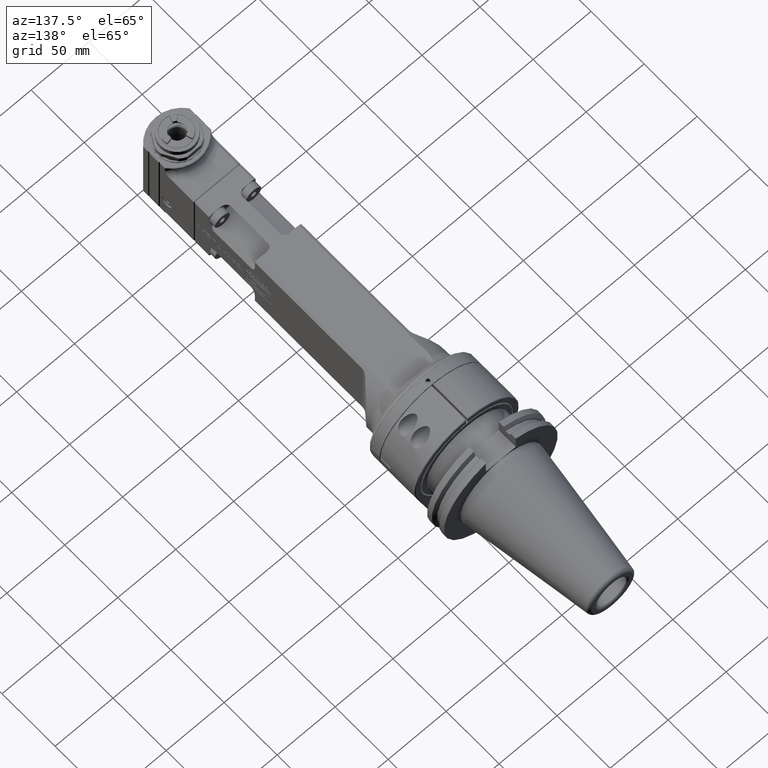
[diagram: clean part render]
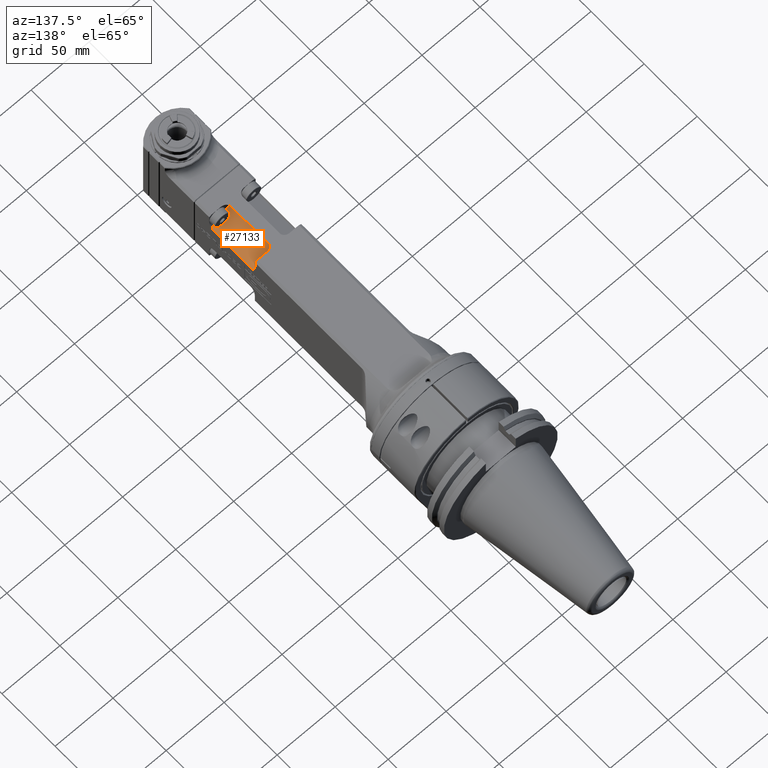
[diagram: same view with one face highlighted and labeled with its STEP entity id]
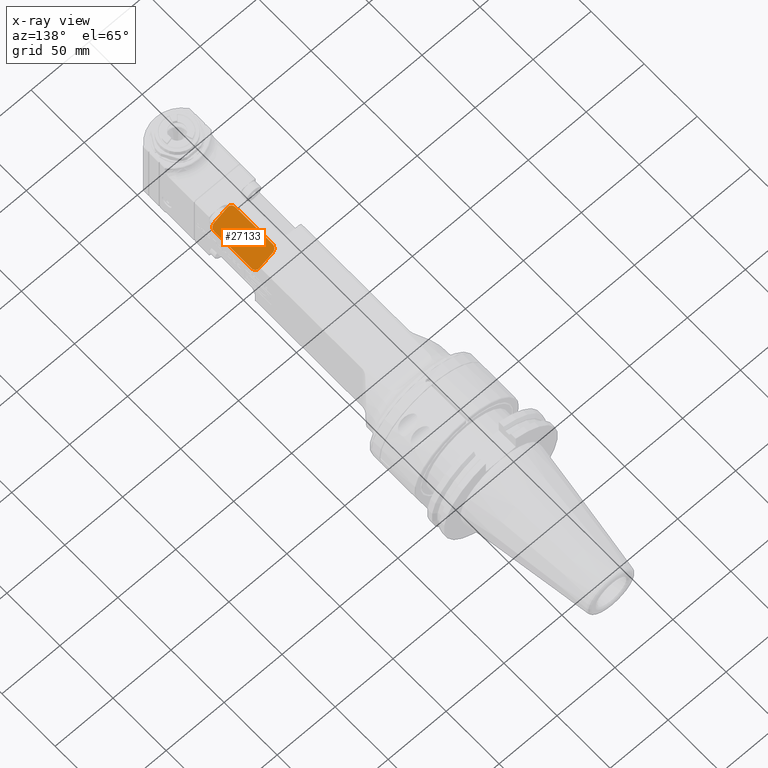
[diagram: x-ray of the same camera — body ghosted, the highlighted face saturated]
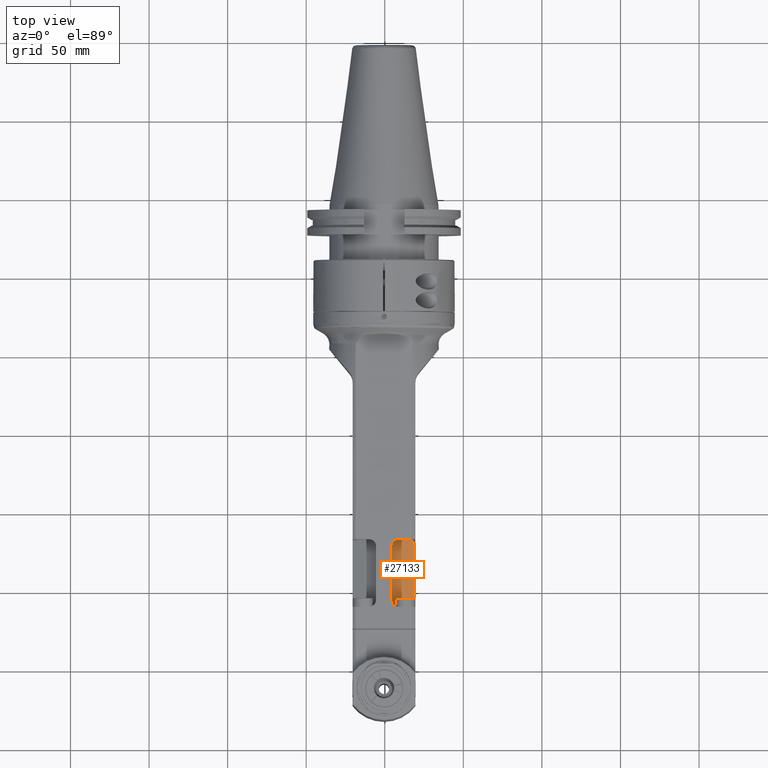
[diagram: same view with one face highlighted and labeled with its STEP entity id]
A machine part, auxiliary view. The second image highlights one B-rep face of the part: STEP entity #27133.
The next image is the same camera in x-ray: the body ghosted, the highlighted face saturated — about 0% of this face is hidden behind the body in this view.
A second angle (top view) of the same face is appended — the face is thin or edge-on in the first view.
In plain terms, the highlighted planar face has unit normal (0.4981, -0, 0.8671).
Its self-contained STEP definition (entity closure, byte-faithful):
#1224=CIRCLE('',#29288,4.);
#1225=CIRCLE('',#29290,4.);
#1226=CIRCLE('',#29291,4.);
#1227=CIRCLE('',#29292,4.);
#2752=FACE_OUTER_BOUND('',#4372,.T.);
#4372=EDGE_LOOP('',(#20360,#20361,#20362,#20363,#20364,#20365,#20366,#20367));
#6283=LINE('',#43739,#8918);
#6285=LINE('',#43751,#8920);
#6286=LINE('',#43754,#8921);
#6287=LINE('',#43757,#8922);
#8918=VECTOR('',#33771,13.0000000000003);
#8920=VECTOR('',#33783,13.0000000000003);
#8921=VECTOR('',#33786,35.);
#8922=VECTOR('',#33789,35.);
#11718=VERTEX_POINT('',#43733);
#11720=VERTEX_POINT('',#43737);
#11722=VERTEX_POINT('',#43743);
#11723=VERTEX_POINT('',#43747);
#11724=VERTEX_POINT('',#43748);
#11725=VERTEX_POINT('',#43750);
#11726=VERTEX_POINT('',#43752);
#11727=VERTEX_POINT('',#43755);
#14878=EDGE_CURVE('',#11720,#11718,#6283,.T.);
#14880=EDGE_CURVE('',#11722,#11718,#1224,.T.);
#14882=EDGE_CURVE('',#11723,#11724,#1225,.T.);
#14883=EDGE_CURVE('',#11724,#11725,#6285,.T.);
#14884=EDGE_CURVE('',#11725,#11726,#1226,.T.);
#14885=EDGE_CURVE('',#11722,#11726,#6286,.T.);
#14886=EDGE_CURVE('',#11720,#11727,#1227,.T.);
#14887=EDGE_CURVE('',#11727,#11723,#6287,.T.);
#20360=ORIENTED_EDGE('',*,*,#14882,.T.);
#20361=ORIENTED_EDGE('',*,*,#14883,.T.);
#20362=ORIENTED_EDGE('',*,*,#14884,.T.);
#20363=ORIENTED_EDGE('',*,*,#14885,.F.);
#20364=ORIENTED_EDGE('',*,*,#14880,.T.);
#20365=ORIENTED_EDGE('',*,*,#14878,.F.);
#20366=ORIENTED_EDGE('',*,*,#14886,.T.);
#20367=ORIENTED_EDGE('',*,*,#14887,.T.);
#25923=PLANE('',#29289);
#27133=ADVANCED_FACE('',(#2752),#25923,.T.);
#29288=AXIS2_PLACEMENT_3D('',#43744,#33776,#33777);
#29289=AXIS2_PLACEMENT_3D('',#43746,#33779,#33780);
#29290=AXIS2_PLACEMENT_3D('',#43749,#33781,#33782);
#29291=AXIS2_PLACEMENT_3D('',#43753,#33784,#33785);
#29292=AXIS2_PLACEMENT_3D('',#43756,#33787,#33788);
#33771=DIRECTION('',(-0.49812446056829,0.,0.867105542470783));
#33776=DIRECTION('center_axis',(-0.867105542470783,0.,-0.49812446056829));
#33777=DIRECTION('ref_axis',(-0.49812446056829,0.,0.867105542470783));
#33779=DIRECTION('center_axis',(-0.867105542470783,0.,-0.49812446056829));
#33780=DIRECTION('ref_axis',(-0.49812446056829,0.,0.867105542470783));
#33781=DIRECTION('center_axis',(-0.867105542470783,0.,-0.49812446056829));
#33782=DIRECTION('ref_axis',(0.49812446056829,0.,-0.867105542470783));
#33783=DIRECTION('',(-0.49812446056829,0.,0.867105542470783));
#33784=DIRECTION('center_axis',(-0.867105542470783,0.,-0.49812446056829));
#33785=DIRECTION('ref_axis',(0.,-1.,0.));
#33786=DIRECTION('',(0.,-1.,0.));
#33787=DIRECTION('center_axis',(-0.867105542470783,0.,-0.49812446056829));
#33788=DIRECTION('ref_axis',(0.,1.,0.));
#33789=DIRECTION('',(0.,-1.,0.));
#43733=CARTESIAN_POINT('',(-21.01347261434,213.,-4.57536541559));
#43737=CARTESIAN_POINT('',(-14.53785462696,213.,-15.84773746771));
#43739=CARTESIAN_POINT('',(-14.53785462696,213.,-15.84773746771));
#43743=CARTESIAN_POINT('',(-23.00597045662,209.,-1.106943245707));
#43744=CARTESIAN_POINT('Origin',(-21.01347261434,209.,-4.57536541559));
#43746=CARTESIAN_POINT('Origin',(-12.54535678468,213.,-19.31615963759));
#43747=CARTESIAN_POINT('',(-12.54535678468,174.,-19.31615963759));
#43748=CARTESIAN_POINT('',(-14.53785462696,170.,-15.84773746771));
#43749=CARTESIAN_POINT('Origin',(-14.53785462696,174.,-15.84773746771));
#43750=CARTESIAN_POINT('',(-21.01347261434,170.,-4.57536541559));
#43751=CARTESIAN_POINT('',(-14.53785462696,170.,-15.84773746771));
#43752=CARTESIAN_POINT('',(-23.00597045662,174.,-1.106943245707));
#43753=CARTESIAN_POINT('Origin',(-21.01347261434,174.,-4.57536541559));
#43754=CARTESIAN_POINT('',(-23.00597045662,209.,-1.106943245707));
#43755=CARTESIAN_POINT('',(-12.54535678468,209.,-19.31615963759));
#43756=CARTESIAN_POINT('Origin',(-14.53785462696,209.,-15.84773746771));
#43757=CARTESIAN_POINT('',(-12.54535678468,209.,-19.31615963759));